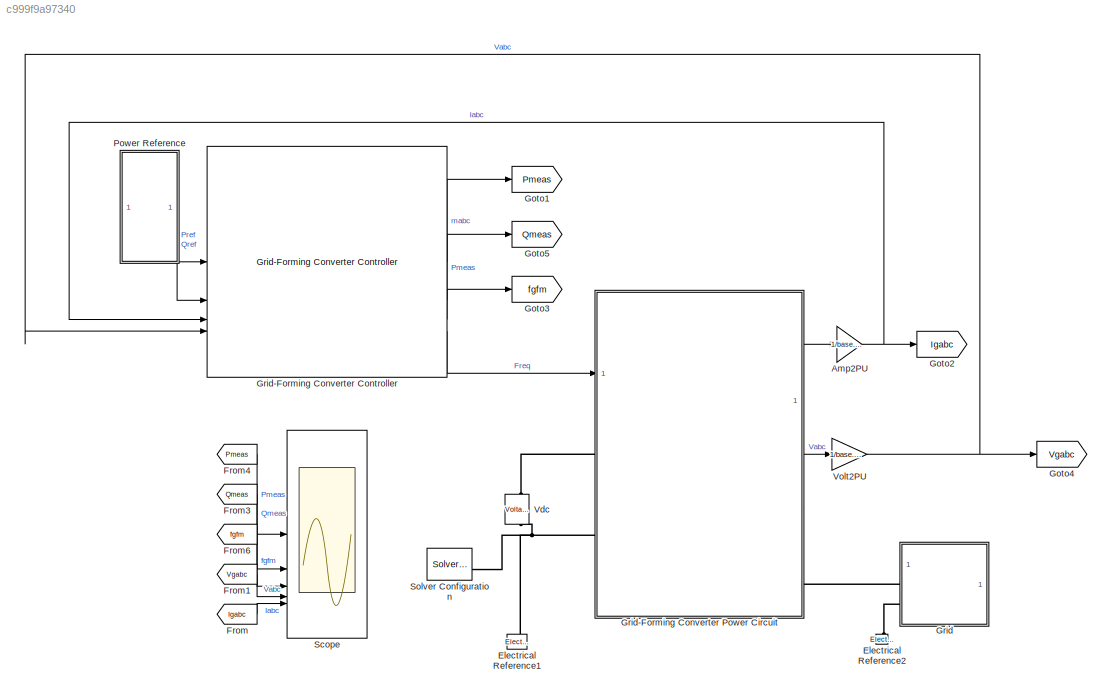
MODEL slx_c999f9a97340
KIND model
CONFIG AbsTol = 1e-3
CONFIG EnableMultiTasking = off
CONFIG FixedStep = Ts
CONFIG MaxStep = auto
CONFIG MinStep = auto
CONFIG PreLoadFcn = % Parameterize the model\nTestGridFormingControllerInputParameters;\n
CONFIG RelTol = 1e-3
CONFIG SampleTimeConstraint = Unconstrained
CONFIG SolverName = VariableStepAuto
CONFIG StartTime = 0.0
CONFIG StopTime = simulationTime
BLOCK [Gain] Amp2PU
  Gain = 1/base.current
BLOCK [Reference] Electrical Reference1  REF=fl_lib/Electrical/Electrical Elements/Electrical Reference
  NameLocation = right
  SourceBlock = fl_lib/Electrical/Electrical Elements/Electrical Reference
  SourceType = Electrical Reference
BLOCK [Reference] Electrical Reference2  REF=fl_lib/Electrical/Electrical Elements/Electrical Reference
  NameLocation = right
  SourceBlock = fl_lib/Electrical/Electrical Elements/Electrical Reference
  SourceType = Electrical Reference
BLOCK [From] From
  GotoTag = Igabc
BLOCK [From] From1
  GotoTag = Vgabc
BLOCK [From] From3
  GotoTag = Qmeas
BLOCK [From] From4
  GotoTag = Pmeas
BLOCK [From] From6
  GotoTag = fgfm
BLOCK [Goto] Goto1
  GotoTag = Pmeas
BLOCK [Goto] Goto2
  GotoTag = Igabc
BLOCK [Goto] Goto3
  GotoTag = fgfm
BLOCK [Goto] Goto4
  GotoTag = Vgabc
BLOCK [Goto] Goto5
  GotoTag = Qmeas
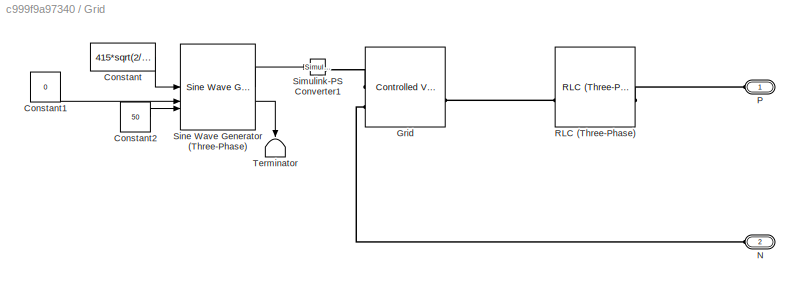
BLOCK [SubSystem] Grid
BLOCK [Reference] Grid-Forming Converter Controller  REF=GFMLibrary/Grid-Forming Converter Controller
  SourceBlock = GFMLibrary/Grid-Forming Converter Controller
  SourceType = Grid-Forming Controller
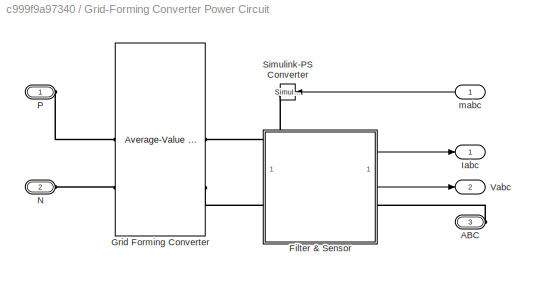
BLOCK [SubSystem] Grid-Forming Converter Power Circuit
BLOCK [PMIOPort] Grid-Forming Converter Power Circuit/ABC
  Port = 3
  Side = Right
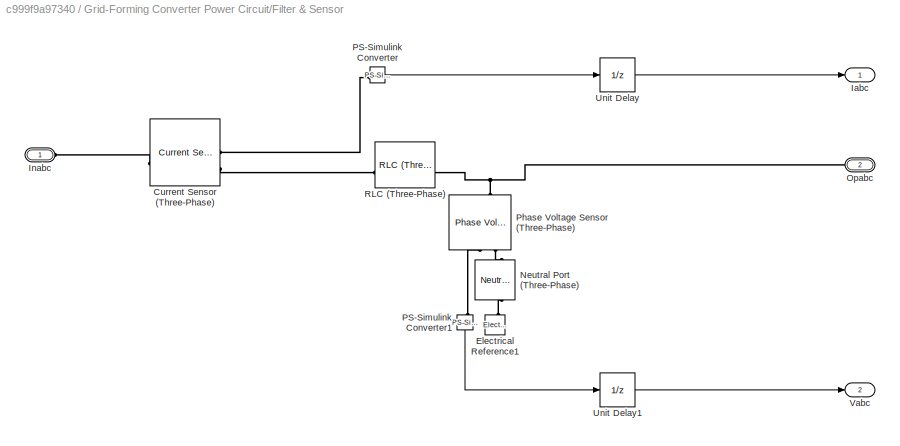
BLOCK [SubSystem] Grid-Forming Converter Power Circuit/Filter & Sensor
BLOCK [Reference] Grid-Forming Converter Power Circuit/Filter & Sensor/Current Sensor (Three-Phase)  REF=ee_lib/Sensors &
Transducers/Current Sensor
(Three-Phase)
  SourceBlock = ee_lib/Sensors &\nTransducers/Current Sensor\n(Three-Phase)
  SourceType = Current Sensor\n(Three-Phase)
BLOCK [Reference] Grid-Forming Converter Power Circuit/Filter & Sensor/Electrical Reference1  REF=fl_lib/Electrical/Electrical Elements/Electrical Reference
  NameLocation = right
  SourceBlock = fl_lib/Electrical/Electrical Elements/Electrical Reference
  SourceType = Electrical Reference
BLOCK [Outport] Grid-Forming Converter Power Circuit/Filter & Sensor/Iabc
BLOCK [PMIOPort] Grid-Forming Converter Power Circuit/Filter & Sensor/Inabc
  Side = Left
BLOCK [Reference] Grid-Forming Converter Power Circuit/Filter & Sensor/Neutral Port (Three-Phase)  REF=ee_lib/Connectors &
References/Neutral Port
(Three-Phase)
  NameLocation = right
  SourceBlock = ee_lib/Connectors &\nReferences/Neutral Port\n(Three-Phase)
  SourceType = Neutral Port\n(Three-Phase)
BLOCK [PMIOPort] Grid-Forming Converter Power Circuit/Filter & Sensor/Opabc
  Port = 2
  Side = Right
BLOCK [Reference] Grid-Forming Converter Power Circuit/Filter & Sensor/PS-Simulink Converter  REF=nesl_utility/PS-Simulink
Converter
  SourceBlock = nesl_utility/PS-Simulink\nConverter
  SourceType = PS-Simulink\nConverter
BLOCK [Reference] Grid-Forming Converter Power Circuit/Filter & Sensor/PS-Simulink Converter1  REF=nesl_utility/PS-Simulink
Converter
  NameLocation = left
  SourceBlock = nesl_utility/PS-Simulink\nConverter
  SourceType = PS-Simulink\nConverter
BLOCK [Reference] Grid-Forming Converter Power Circuit/Filter & Sensor/Phase Voltage Sensor (Three-Phase)  REF=ee_lib/Sensors &
Transducers/Phase Voltage Sensor
(Three-Phase)
  NameLocation = right
  SourceBlock = ee_lib/Sensors &\nTransducers/Phase Voltage Sensor\n(Three-Phase)
  SourceType = Phase Voltage Sensor\n(Three-Phase)
BLOCK [Reference] Grid-Forming Converter Power Circuit/Filter & Sensor/RLC (Three-Phase)  REF=ee_lib/Passive/RLC Assemblies/RLC (Three-Phase)
  SourceBlock = ee_lib/Passive/RLC Assemblies/RLC (Three-Phase)
  SourceType = RLC (Three-Phase)
BLOCK [UnitDelay] Grid-Forming Converter Power Circuit/Filter & Sensor/Unit Delay
  HasFrameUpgradeWarning = on
  SampleTime = -1
BLOCK [UnitDelay] Grid-Forming Converter Power Circuit/Filter & Sensor/Unit Delay1
  HasFrameUpgradeWarning = on
  SampleTime = -1
BLOCK [Outport] Grid-Forming Converter Power Circuit/Filter & Sensor/Vabc
  Port = 2
BLOCK [Reference] Grid-Forming Converter Power Circuit/Grid Forming Converter  REF=ee_lib/Semiconductors &
Converters/Converters/Average-Value
Voltage Source
Converter
(Three-Phase)
  SourceBlock = ee_lib/Semiconductors &\nConverters/Converters/Average-Value\nVoltage Source\nConverter\n(Three-Phase)
  SourceType = Average-Value\nVoltage Source\nConverter\n(Three-Phase)
BLOCK [Outport] Grid-Forming Converter Power Circuit/Iabc
BLOCK [PMIOPort] Grid-Forming Converter Power Circuit/N
  Port = 2
  Side = Left
BLOCK [PMIOPort] Grid-Forming Converter Power Circuit/P
  NameLocation = top
  Side = Left
BLOCK [Reference] Grid-Forming Converter Power Circuit/Simulink-PS Converter  REF=nesl_utility/Simulink-PS
Converter
  NameLocation = top
  SourceBlock = nesl_utility/Simulink-PS\nConverter
  SourceType = Simulink-PS\nConverter
BLOCK [Outport] Grid-Forming Converter Power Circuit/Vabc
  Port = 2
BLOCK [Inport] Grid-Forming Converter Power Circuit/mabc
BLOCK [Constant] Grid/Constant
  Value = 415*sqrt(2/3)*1.05
BLOCK [Constant] Grid/Constant1
  Value = 0
BLOCK [Constant] Grid/Constant2
  Value = 50
BLOCK [Reference] Grid/Grid  REF=ee_lib/Sources/Controlled Voltage
Source
(Three-Phase)
  SourceBlock = ee_lib/Sources/Controlled Voltage\nSource\n(Three-Phase)
  SourceType = Controlled Voltage\nSource\n(Three-Phase)
BLOCK [PMIOPort] Grid/N
  Port = 2
  Side = Left
BLOCK [PMIOPort] Grid/P
  Side = Left
BLOCK [Reference] Grid/RLC (Three-Phase)  REF=ee_lib/Passive/RLC Assemblies/RLC (Three-Phase)
  SourceBlock = ee_lib/Passive/RLC Assemblies/RLC (Three-Phase)
  SourceType = RLC (Three-Phase)
BLOCK [Reference] Grid/Simulink-PS Converter1  REF=nesl_utility/Simulink-PS
Converter
  SourceBlock = nesl_utility/Simulink-PS\nConverter
  SourceType = Simulink-PS\nConverter
BLOCK [Reference] Grid/Sine Wave Generator (Three-Phase)  REF=eeSinGeneratorThreePhase/Sine Wave Generator
(Three-Phase)
  SourceBlock = eeSinGeneratorThreePhase/Sine Wave Generator\n(Three-Phase)
  SourceType = Sine Wave Generator (Three-Phase)
BLOCK [Terminator] Grid/Terminator
  NameLocation = left
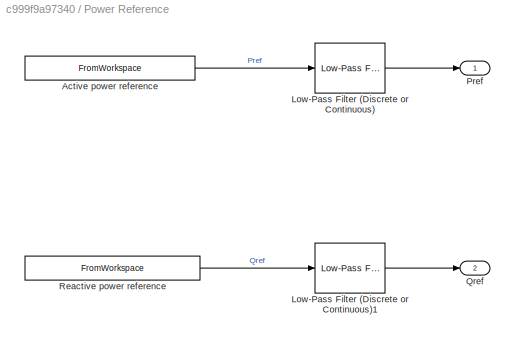
BLOCK [SubSystem] Power Reference
BLOCK [FromWorkspace] Power Reference/Active power reference
  OutputAfterFinalValue = Holding final value
  SampleTime = localSolverSampleTime
  VariableName = testCondition.gfmRealPowerRefProfile
BLOCK [Reference] Power Reference/Low-Pass Filter (Discrete or Continuous)  REF=eeGeneralControl/Low-Pass Filter
(Discrete or Continuous)
  LibrarySourceBlock = ee_sl_lib/General Control/Low-Pass Filter\n(Discrete or Continuous)
  SourceBlock = eeGeneralControl/Low-Pass Filter\n(Discrete or Continuous)
  SourceType = Low-Pass Filter (Discrete or Continuous)
BLOCK [Reference] Power Reference/Low-Pass Filter (Discrete or Continuous)1  REF=eeGeneralControl/Low-Pass Filter
(Discrete or Continuous)
  LibrarySourceBlock = ee_sl_lib/General Control/Low-Pass Filter\n(Discrete or Continuous)
  SourceBlock = eeGeneralControl/Low-Pass Filter\n(Discrete or Continuous)
  SourceType = Low-Pass Filter (Discrete or Continuous)
BLOCK [Outport] Power Reference/Pref
BLOCK [Outport] Power Reference/Qref
  Port = 2
BLOCK [FromWorkspace] Power Reference/Reactive power reference
  OutputAfterFinalValue = Holding final value
  SampleTime = localSolverSampleTime
  VariableName = testCondition.gfmReactivePowerRefProfile
BLOCK [Scope] Scope
  ActiveDisplayYMaximum = 1.0233144736966111
  ActiveDisplayYMinimum = -0.18492062532329751
  DataLoggingVariableName = ScopeData1
  Floating = off
  GraphicalSettings = {"Style":{"BackgroundColor":[0.12941176470588237,0.12941176470588237,0.12941176470588237],"AxesColor":[0.07058823529411765,0.07058823529411765,0.07058823529411765],"LabelsColor":[0.8509803921568627,0.8509803921568627,0.8509803921568627],"PreserveColors":false,"Visible":[true,true,true,true,true,true,true,true,true],"LineStyle":["-","-","-","-","-","-","-","-","-"],"LineWidth":[1.5,1.5,1.5,1.5,1.5,...<+4573ch>
  LayoutDimensionsString = [3 2]
  MultipleDisplayCache = [{"MaxYLimMag":1.0233144736966111,"MaxYLimReal":1.0233144736966111,"MinYLimMag":0,"MinYLimReal":-0.18492062532329751,"PlotAsMagnitudePhase":false,"ShowGrid":true,"ShowLegend":true,"Title":"Active Power Measured in pu","YLabel":""},{"MaxYLimMag":0.60775073614464215,"MaxYLimReal":0.0679753198513514,"MinYLimMag":0,"MinYLimReal":-0.60775073614464215,"PlotAsMagnitudePhase":false,"ShowGrid":true,"ShowLe...<+1006ch>
  NumInputPorts = 5
  ScopeFrameLocation = window
  ShowLegend = on
  Title = Active Power Measured in pu
  WasSavedAsWebScope = on
  WindowPosition = [311.000000,56.000000,1280.000000,593.000000,]
BLOCK [Reference] Solver Configuration  REF=nesl_utility/Solver
Configuration
  SourceBlock = nesl_utility/Solver\nConfiguration
  SourceType = Solver\nConfiguration
BLOCK [Reference] Vdc  REF=ee_lib/Sources/Voltage Source
  NameLocation = left
  SourceBlock = ee_lib/Sources/Voltage Source
  SourceType = Voltage Source
BLOCK [Gain] Volt2PU
  Gain = 1/base.voltage
NET Amp2PU:1 -> Goto2:1, Grid-Forming Converter Controller:3
LINE From1:1 -> Scope:4
LINE From3:1 -> Scope:2
LINE From4:1 -> Scope:1
LINE From6:1 -> Scope:3
LINE From:1 -> Scope:5
LINE Grid-Forming Converter Controller:1 -> Goto1:1
LINE Grid-Forming Converter Controller:2 -> Goto5:1
LINE Grid-Forming Converter Controller:3 -> Goto3:1
LINE Grid-Forming Converter Controller:4 -> Grid-Forming Converter Power Circuit:1
LINE Grid-Forming Converter Power Circuit/Filter & Sensor/PS-Simulink Converter1:1 -> Grid-Forming Converter Power Circuit/Filter & Sensor/Unit Delay1:1
LINE Grid-Forming Converter Power Circuit/Filter & Sensor/PS-Simulink Converter:1 -> Grid-Forming Converter Power Circuit/Filter & Sensor/Unit Delay:1
LINE Grid-Forming Converter Power Circuit/Filter & Sensor/Unit Delay1:1 -> Grid-Forming Converter Power Circuit/Filter & Sensor/Vabc:1
LINE Grid-Forming Converter Power Circuit/Filter & Sensor/Unit Delay:1 -> Grid-Forming Converter Power Circuit/Filter & Sensor/Iabc:1
LINE Grid-Forming Converter Power Circuit/Filter & Sensor:1 -> Grid-Forming Converter Power Circuit/Iabc:1
LINE Grid-Forming Converter Power Circuit/Filter & Sensor:2 -> Grid-Forming Converter Power Circuit/Vabc:1
LINE Grid-Forming Converter Power Circuit/mabc:1 -> Grid-Forming Converter Power Circuit/Simulink-PS Converter:1
LINE Grid-Forming Converter Power Circuit:1 -> Amp2PU:1
LINE Grid-Forming Converter Power Circuit:2 -> Volt2PU:1
LINE Grid/Constant1:1 -> Grid/Sine Wave Generator (Three-Phase):2
LINE Grid/Constant2:1 -> Grid/Sine Wave Generator (Three-Phase):3
LINE Grid/Constant:1 -> Grid/Sine Wave Generator (Three-Phase):1
LINE Grid/Sine Wave Generator (Three-Phase):1 -> Grid/Simulink-PS Converter1:1
LINE Grid/Sine Wave Generator (Three-Phase):2 -> Grid/Terminator:1
LINE Power Reference/Active power reference:1 -> Power Reference/Low-Pass Filter (Discrete or Continuous):1
LINE Power Reference/Low-Pass Filter (Discrete or Continuous)1:1 -> Power Reference/Qref:1
LINE Power Reference/Low-Pass Filter (Discrete or Continuous):1 -> Power Reference/Pref:1
LINE Power Reference/Reactive power reference:1 -> Power Reference/Low-Pass Filter (Discrete or Continuous)1:1
LINE Power Reference:1 -> Grid-Forming Converter Controller:1
LINE Power Reference:2 -> Grid-Forming Converter Controller:2
NET Volt2PU:1 -> Goto4:1, Grid-Forming Converter Controller:4
PNET net1: Electrical Reference1:LConn1 -- Grid-Forming Converter Power Circuit:LConn2 -- Solver Configuration:RConn1 -- Vdc:RConn1
PLINE Electrical Reference2:LConn1 -- Grid:LConn2
PLINE Grid-Forming Converter Power Circuit/ABC:RConn1 -- Grid-Forming Converter Power Circuit/Filter & Sensor:RConn1
PLINE Grid-Forming Converter Power Circuit/Filter & Sensor/Current Sensor (Three-Phase):LConn1 -- Grid-Forming Converter Power Circuit/Filter & Sensor/Inabc:RConn1
PLINE Grid-Forming Converter Power Circuit/Filter & Sensor/Current Sensor (Three-Phase):RConn1 -- Grid-Forming Converter Power Circuit/Filter & Sensor/PS-Simulink Converter:LConn1
PLINE Grid-Forming Converter Power Circuit/Filter & Sensor/Current Sensor (Three-Phase):RConn2 -- Grid-Forming Converter Power Circuit/Filter & Sensor/RLC (Three-Phase):LConn1
PLINE Grid-Forming Converter Power Circuit/Filter & Sensor/Electrical Reference1:LConn1 -- Grid-Forming Converter Power Circuit/Filter & Sensor/Neutral Port (Three-Phase):RConn1
PLINE Grid-Forming Converter Power Circuit/Filter & Sensor/Neutral Port (Three-Phase):LConn1 -- Grid-Forming Converter Power Circuit/Filter & Sensor/Phase Voltage Sensor (Three-Phase):RConn2
PNET net2: Grid-Forming Converter Power Circuit/Filter & Sensor/Opabc:RConn1 -- Grid-Forming Converter Power Circuit/Filter & Sensor/Phase Voltage Sensor (Three-Phase):LConn1 -- Grid-Forming Converter Power Circuit/Filter & Sensor/RLC (Three-Phase):RConn1
PLINE Grid-Forming Converter Power Circuit/Filter & Sensor/PS-Simulink Converter1:LConn1 -- Grid-Forming Converter Power Circuit/Filter & Sensor/Phase Voltage Sensor (Three-Phase):RConn1
PLINE Grid-Forming Converter Power Circuit/Filter & Sensor:LConn1 -- Grid-Forming Converter Power Circuit/Grid Forming Converter:LConn2
PLINE Grid-Forming Converter Power Circuit/Grid Forming Converter:LConn1 -- Grid-Forming Converter Power Circuit/Simulink-PS Converter:RConn1
PLINE Grid-Forming Converter Power Circuit/Grid Forming Converter:RConn1 -- Grid-Forming Converter Power Circuit/P:RConn1
PLINE Grid-Forming Converter Power Circuit/Grid Forming Converter:RConn2 -- Grid-Forming Converter Power Circuit/N:RConn1
PLINE Grid-Forming Converter Power Circuit:LConn1 -- Vdc:LConn1
PLINE Grid-Forming Converter Power Circuit:RConn1 -- Grid:LConn1
PLINE Grid/Grid:LConn1 -- Grid/Simulink-PS Converter1:RConn1
PLINE Grid/Grid:LConn2 -- Grid/N:RConn1
PLINE Grid/Grid:RConn1 -- Grid/RLC (Three-Phase):LConn1
PLINE Grid/P:RConn1 -- Grid/RLC (Three-Phase):RConn1
note: NET lines group one-source signal fan-out (src -> all destinations, sorted); 1:1 wires keep LINE; PNET lines group multi-terminal physical nets as a canonical sorted terminal list (undirected conserving connections); 2-terminal nets keep the pairwise PLINE form
